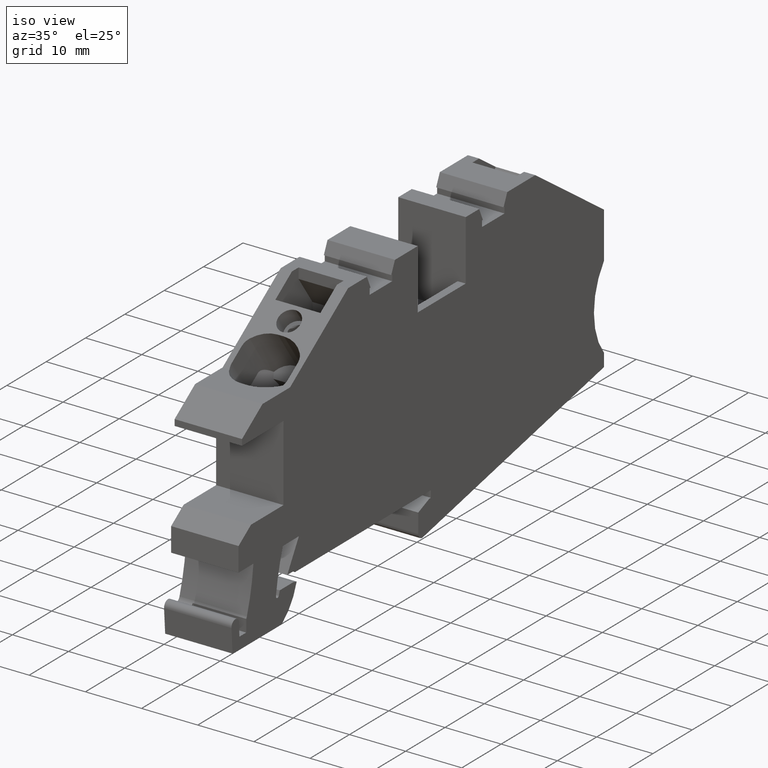
[diagram: clean part render]
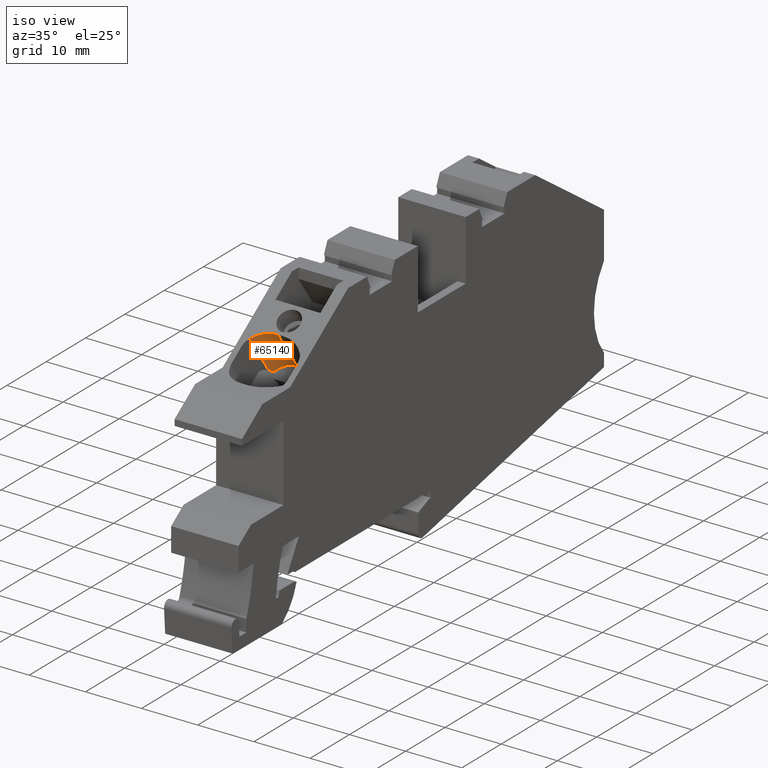
[diagram: same view with one face highlighted and labeled with its STEP entity id]
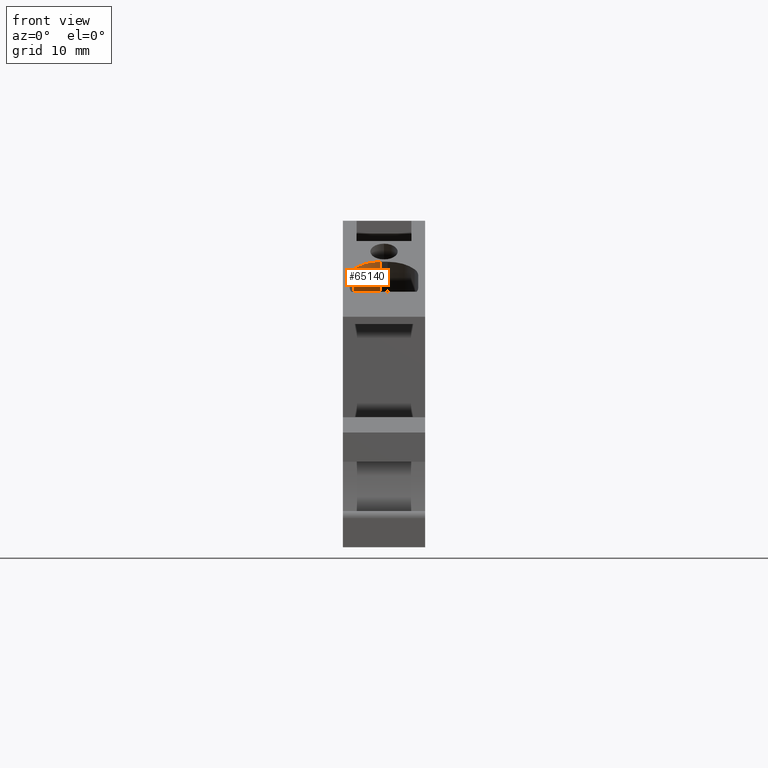
[diagram: same view with one face highlighted and labeled with its STEP entity id]
A machine part, iso view. The second image highlights one B-rep face of the part: STEP entity #65140.
A second angle (front view) of the same face is appended — the face is thin or edge-on in the first view.
In plain terms, the highlighted cylindrical surface (edge-blend (fillet) strip) has radius 5 mm, axis along (0, 0.5736, -0.8192).
Its self-contained STEP definition (entity closure, byte-faithful):
#53490=CARTESIAN_POINT('',(19.48307139619,34.4123374866437,46.164047399)
);
#53500=VERTEX_POINT('',#53490);
#53530=CARTESIAN_POINT('',(15.387311117308,31.5444553154555,46.164047399
));
#53540=DIRECTION('',(0.573576429535614,-0.819152049061209,
-8.3130525796908E-17));
#53550=DIRECTION('',(0.506818084889207,0.354877837256203,
-0.785618959454007));
#53560=AXIS2_PLACEMENT_3D('',#53530,#53540,#53550);
#53570=CIRCLE('',#53560,5.);
#53580=CARTESIAN_POINT('',(17.9214015558638,33.3188445116163,
42.235952579165));
#53590=VERTEX_POINT('',#53580);
#53600=EDGE_CURVE('',#53590,#53500,#53570,.T.);
#63590=CARTESIAN_POINT('',(23.5806238636836,25.91270768408,
42.5751293318815));
#63600=VERTEX_POINT('',#63590);
#63800=CARTESIAN_POINT('',(22.7933044529604,26.3610459462072,
42.23595260147));
#63810=VERTEX_POINT('',#63800);
#63840=CARTESIAN_POINT('',(25.6985882876786,16.8184251168547,
46.164047399));
#63850=DIRECTION('',(0.219498196778416,-0.31347591776366,
-0.923879532511276));
#63860=DIRECTION('',(-0.52991552357885,0.756797812142324,
-0.382683432365114));
#63870=AXIS2_PLACEMENT_3D('',#63840,#63850,#63860);
#63880=ELLIPSE('',#63870,13.0656296487629,5.);
#63890=EDGE_CURVE('',#63810,#63600,#63880,.T.);
#64240=CARTESIAN_POINT('',(21.8817427786224,22.2694455191833,
46.164047399));
#64250=DIRECTION('',(-0.906307783520422,0.422618269281275,
2.52770075731242E-16));
#64260=DIRECTION('',(0.422618269281275,0.906307783520422,
-7.20509592766977E-16));
#64270=AXIS2_PLACEMENT_3D('',#64240,#64250,#64260);
#64280=ELLIPSE('',#64270,5.77350269189626,5.);
#64290=CARTESIAN_POINT('',(24.3217304939623,27.502015947025,46.164047399
));
#64300=VERTEX_POINT('',#64290);
#64310=EDGE_CURVE('',#64300,#63600,#64280,.T.);
#64790=CARTESIAN_POINT('',(28.4080412762963,21.6661592449638,
46.164047399));
#64800=DIRECTION('',(-0.573576429535614,0.819152049061209,
8.3130525796908E-17));
#64810=VECTOR('',#64800,1.);
#64820=LINE('',#64790,#64810);
#64830=EDGE_CURVE('',#64300,#53500,#64820,.T.);
#64970=CARTESIAN_POINT('',(15.3873112069956,31.5444553782554,
46.164047399));
#64980=DIRECTION('',(0.573576429535615,-0.819152049061208,
-2.76193745656502E-17));
#64990=DIRECTION('',(0.819152049061208,0.573576429535615,
8.94581626061073E-18));
#65000=AXIS2_PLACEMENT_3D('',#64970,#64980,#64990);
#65010=CYLINDRICAL_SURFACE('',#65000,4.99999996064305);
#65020=ORIENTED_EDGE('',*,*,#64310,.F.);
#65030=ORIENTED_EDGE('',*,*,#63890,.T.);
#65040=CARTESIAN_POINT('',(26.8463714551487,20.5726662833654,
42.2359526014822));
#65050=DIRECTION('',(-0.573576429535614,0.819152049061209,
8.3130525796908E-17));
#65060=VECTOR('',#65050,1.);
#65070=LINE('',#65040,#65060);
#65080=EDGE_CURVE('',#63810,#53590,#65070,.T.);
#65090=ORIENTED_EDGE('',*,*,#65080,.F.);
#65100=ORIENTED_EDGE('',*,*,#53600,.F.);
#65110=ORIENTED_EDGE('',*,*,#64830,.T.);
#65120=EDGE_LOOP('',(#65110,#65100,#65090,#65030,#65020));
#65130=FACE_OUTER_BOUND('',#65120,.T.);
#65140=ADVANCED_FACE('',(#65130),#65010,.F.);